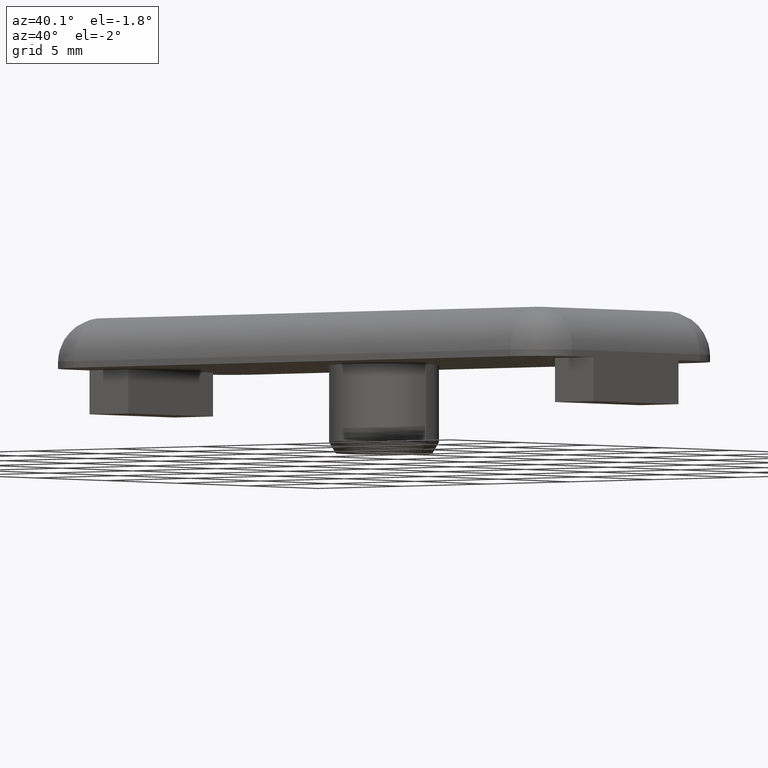
[diagram: clean part render]
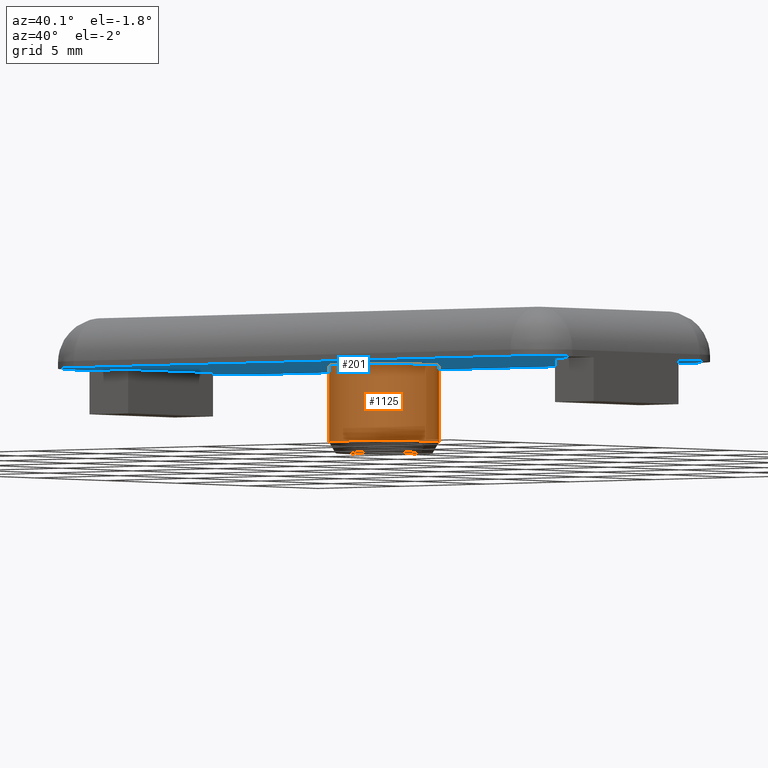
[diagram: same view with the hole feature highlighted: cylindrical wall and planar end face, labeled with their STEP entity ids]
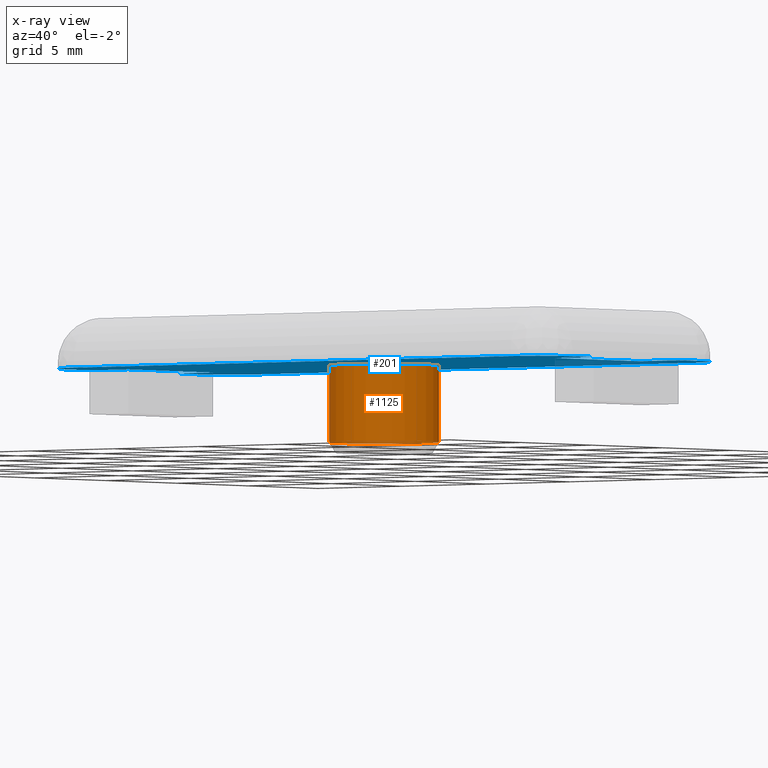
[diagram: x-ray of the same camera — body ghosted, the hole faces saturated]
A machine part, auxiliary view. The highlighted faces form one hole feature of diameter 5 mm: the cylindrical wall (entity #1125, orange) and its adjacent planar end face (entity #201, blue) — they share a circular edge in the B-rep.
The next image is the same camera in x-ray (body ghosted, the hole faces saturated) — the bore reads through the body.
Wall:
#181=CARTESIAN_POINT('',(-2.500000000000000,0.0,0.0));
#182=VERTEX_POINT('',#181);
#183=CARTESIAN_POINT('',(2.500000000000000,0.0,0.0));
#184=VERTEX_POINT('',#183);
#185=CARTESIAN_POINT('',(0.0,0.0,0.0));
#186=DIRECTION('',(0.0,0.0,-1.0));
#187=DIRECTION('',(1.0,0.0,0.0));
#188=AXIS2_PLACEMENT_3D('',#185,#186,#187);
#189=CIRCLE('',#188,2.500000000000000);
#190=EDGE_CURVE('',#182,#184,#189,.T.);
#192=CARTESIAN_POINT('',(0.0,0.0,0.0));
#193=DIRECTION('',(0.0,0.0,-1.0));
#194=DIRECTION('',(1.0,0.0,0.0));
#195=AXIS2_PLACEMENT_3D('',#192,#193,#194);
#196=CIRCLE('',#195,2.500000000000000);
#197=EDGE_CURVE('',#184,#182,#196,.T.);
#1091=CARTESIAN_POINT('',(0.0,0.0,0.0));
#1092=DIRECTION('',(0.0,0.0,-1.0));
#1093=DIRECTION('',(1.0,0.0,0.0));
#1094=AXIS2_PLACEMENT_3D('',#1091,#1092,#1093);
#1095=CYLINDRICAL_SURFACE('',#1094,2.500000000000000);
#1096=ORIENTED_EDGE('',*,*,#197,.T.);
#1097=ORIENTED_EDGE('',*,*,#190,.T.);
#1098=CARTESIAN_POINT('',(2.500000000000000,0.0,-3.500000000000000));
#1099=VERTEX_POINT('',#1098);
#1100=CARTESIAN_POINT('',(2.500000000000000,0.0,0.0));
#1101=DIRECTION('',(0.0,0.0,-1.0));
#1102=VECTOR('',#1101,3.500000000000000);
#1103=LINE('',#1100,#1102);
#1104=EDGE_CURVE('',#184,#1099,#1103,.T.);
#1105=ORIENTED_EDGE('',*,*,#1104,.T.);
#1106=CARTESIAN_POINT('',(-2.500000000000000,0.0,-3.500000000000000));
#1107=VERTEX_POINT('',#1106);
#1108=CARTESIAN_POINT('',(0.0,0.0,-3.500000000000000));
#1109=DIRECTION('',(0.0,0.0,-1.0));
#1110=DIRECTION('',(1.0,0.0,0.0));
#1111=AXIS2_PLACEMENT_3D('',#1108,#1109,#1110);
#1112=CIRCLE('',#1111,2.500000000000000);
#1113=EDGE_CURVE('',#1107,#1099,#1112,.T.);
#1114=ORIENTED_EDGE('',*,*,#1113,.F.);
#1115=CARTESIAN_POINT('',(0.0,0.0,-3.500000000000000));
#1116=DIRECTION('',(0.0,0.0,-1.0));
#1117=DIRECTION('',(1.0,0.0,0.0));
#1118=AXIS2_PLACEMENT_3D('',#1115,#1116,#1117);
#1119=CIRCLE('',#1118,2.500000000000000);
#1120=EDGE_CURVE('',#1099,#1107,#1119,.T.);
#1121=ORIENTED_EDGE('',*,*,#1120,.F.);
#1122=ORIENTED_EDGE('',*,*,#1104,.F.);
#1123=EDGE_LOOP('',(#1096,#1097,#1105,#1114,#1121,#1122));
#1124=FACE_OUTER_BOUND('',#1123,.T.);
#1125=ADVANCED_FACE('',(#1124),#1095,.T.);
End face:
#42=CARTESIAN_POINT('',(-18.000018310589386,-7.800018310589508,0.0));
#43=DIRECTION('',(0.0,0.0,1.0));
#44=DIRECTION('',(1.0,0.0,0.0));
#45=AXIS2_PLACEMENT_3D('',#42,#43,#44);
#46=PLANE('',#45);
#47=CARTESIAN_POINT('',(13.000000000000110,6.500000000000000,0.0));
#48=VERTEX_POINT('',#47);
#49=CARTESIAN_POINT('',(15.000000000000110,4.500000000000000,0.0));
#50=VERTEX_POINT('',#49);
#51=CARTESIAN_POINT('',(13.000000000000110,4.500000000000000,0.0));
#52=DIRECTION('',(0.0,0.0,-1.0));
#53=DIRECTION('',(0.0,1.0,0.0));
#54=AXIS2_PLACEMENT_3D('',#51,#52,#53);
#55=CIRCLE('',#54,2.0);
#56=EDGE_CURVE('',#48,#50,#55,.T.);
#57=ORIENTED_EDGE('',*,*,#56,.T.);
#58=CARTESIAN_POINT('',(15.000000000000110,3.0,0.0));
#59=VERTEX_POINT('',#58);
#60=CARTESIAN_POINT('',(15.000000000000110,3.0,0.0));
#61=DIRECTION('',(0.0,1.0,0.0));
#62=VECTOR('',#61,1.500000000000000);
#63=LINE('',#60,#62);
#64=EDGE_CURVE('',#59,#50,#63,.T.);
#65=ORIENTED_EDGE('',*,*,#64,.F.);
#66=CARTESIAN_POINT('',(12.700000000000159,3.0,0.0));
#67=VERTEX_POINT('',#66);
#68=CARTESIAN_POINT('',(12.700000000000159,3.0,0.0));
#69=DIRECTION('',(1.0,0.0,0.0));
#70=VECTOR('',#69,2.299999999999951);
#71=LINE('',#68,#70);
#72=EDGE_CURVE('',#67,#59,#71,.T.);
#73=ORIENTED_EDGE('',*,*,#72,.F.);
#74=CARTESIAN_POINT('',(12.700000000000159,-3.0,0.0));
#75=VERTEX_POINT('',#74);
#76=CARTESIAN_POINT('',(12.700000000000159,-3.0,0.0));
#77=DIRECTION('',(0.0,1.0,0.0));
#78=VECTOR('',#77,6.0);
#79=LINE('',#76,#78);
#80=EDGE_CURVE('',#75,#67,#79,.T.);
#81=ORIENTED_EDGE('',*,*,#80,.F.);
#82=CARTESIAN_POINT('',(15.000000000000110,-3.0,0.0));
#83=VERTEX_POINT('',#82);
#84=CARTESIAN_POINT('',(15.000000000000110,-3.0,0.0));
#85=DIRECTION('',(-1.0,0.0,0.0));
#86=VECTOR('',#85,2.299999999999951);
#87=LINE('',#84,#86);
#88=EDGE_CURVE('',#83,#75,#87,.T.);
#89=ORIENTED_EDGE('',*,*,#88,.F.);
#90=CARTESIAN_POINT('',(15.000000000000110,-4.500000000000000,0.0));
#91=VERTEX_POINT('',#90);
#92=CARTESIAN_POINT('',(15.000000000000110,-4.500000000000000,0.0));
#93=DIRECTION('',(0.0,1.0,0.0));
#94=VECTOR('',#93,1.500000000000000);
#95=LINE('',#92,#94);
#96=EDGE_CURVE('',#91,#83,#95,.T.);
#97=ORIENTED_EDGE('',*,*,#96,.F.);
#98=CARTESIAN_POINT('',(13.000000000000110,-6.500000000000000,0.0));
#99=VERTEX_POINT('',#98);
#100=CARTESIAN_POINT('',(13.000000000000110,-4.500000000000000,0.0));
#101=DIRECTION('',(0.0,0.0,-1.0));
#102=DIRECTION('',(1.0,0.0,0.0));
#103=AXIS2_PLACEMENT_3D('',#100,#101,#102);
#104=CIRCLE('',#103,2.0);
#105=EDGE_CURVE('',#91,#99,#104,.T.);
#106=ORIENTED_EDGE('',*,*,#105,.T.);
#107=CARTESIAN_POINT('',(-12.999999999999879,-6.500000000000000,0.0));
#108=VERTEX_POINT('',#107);
#109=CARTESIAN_POINT('',(-12.999999999999879,-6.500000000000000,0.0));
#110=DIRECTION('',(1.0,0.0,0.0));
#111=VECTOR('',#110,25.999999999999989);
#112=LINE('',#109,#111);
#113=EDGE_CURVE('',#108,#99,#112,.T.);
#114=ORIENTED_EDGE('',*,*,#113,.F.);
#115=CARTESIAN_POINT('',(-14.999999999999879,-4.500000000000000,0.0));
#116=VERTEX_POINT('',#115);
#117=CARTESIAN_POINT('',(-12.999999999999879,-4.500000000000000,0.0));
#118=DIRECTION('',(0.0,0.0,-1.0));
#119=DIRECTION('',(0.0,-1.0,0.0));
#120=AXIS2_PLACEMENT_3D('',#117,#118,#119);
#121=CIRCLE('',#120,2.0);
#122=EDGE_CURVE('',#108,#116,#121,.T.);
#123=ORIENTED_EDGE('',*,*,#122,.T.);
#124=CARTESIAN_POINT('',(-14.999999999999879,-3.0,0.0));
#125=VERTEX_POINT('',#124);
#126=CARTESIAN_POINT('',(-14.999999999999879,-3.0,0.0));
#127=DIRECTION('',(0.0,-1.0,0.0));
#128=VECTOR('',#127,1.500000000000000);
#129=LINE('',#126,#128);
#130=EDGE_CURVE('',#125,#116,#129,.T.);
#131=ORIENTED_EDGE('',*,*,#130,.F.);
#132=CARTESIAN_POINT('',(-12.699999999999930,-3.0,0.0));
#133=VERTEX_POINT('',#132);
#134=CARTESIAN_POINT('',(-12.699999999999930,-3.0,0.0));
#135=DIRECTION('',(-1.0,0.0,0.0));
#136=VECTOR('',#135,2.299999999999949);
#137=LINE('',#134,#136);
#138=EDGE_CURVE('',#133,#125,#137,.T.);
#139=ORIENTED_EDGE('',*,*,#138,.F.);
#140=CARTESIAN_POINT('',(-12.699999999999930,3.0,0.0));
#141=VERTEX_POINT('',#140);
#142=CARTESIAN_POINT('',(-12.699999999999930,3.0,0.0));
#143=DIRECTION('',(0.0,-1.0,0.0));
#144=VECTOR('',#143,6.0);
#145=LINE('',#142,#144);
#146=EDGE_CURVE('',#141,#133,#145,.T.);
#147=ORIENTED_EDGE('',*,*,#146,.F.);
#148=CARTESIAN_POINT('',(-14.999999999999879,3.0,0.0));
#149=VERTEX_POINT('',#148);
#150=CARTESIAN_POINT('',(-14.999999999999879,3.0,0.0));
#151=DIRECTION('',(1.0,0.0,0.0));
#152=VECTOR('',#151,2.299999999999949);
#153=LINE('',#150,#152);
#154=EDGE_CURVE('',#149,#141,#153,.T.);
#155=ORIENTED_EDGE('',*,*,#154,.F.);
#156=CARTESIAN_POINT('',(-14.999999999999879,4.500000000000000,0.0));
#157=VERTEX_POINT('',#156);
#158=CARTESIAN_POINT('',(-14.999999999999879,4.500000000000000,0.0));
#159=DIRECTION('',(0.0,-1.0,0.0));
#160=VECTOR('',#159,1.500000000000000);
#161=LINE('',#158,#160);
#162=EDGE_CURVE('',#157,#149,#161,.T.);
#163=ORIENTED_EDGE('',*,*,#162,.F.);
#164=CARTESIAN_POINT('',(-12.999999999999879,6.500000000000000,0.0));
#165=VERTEX_POINT('',#164);
#166=CARTESIAN_POINT('',(-12.999999999999879,4.500000000000000,0.0));
#167=DIRECTION('',(0.0,0.0,-1.0));
#168=DIRECTION('',(-1.0,0.0,0.0));
#169=AXIS2_PLACEMENT_3D('',#166,#167,#168);
#170=CIRCLE('',#169,2.0);
#171=EDGE_CURVE('',#157,#165,#170,.T.);
#172=ORIENTED_EDGE('',*,*,#171,.T.);
#173=CARTESIAN_POINT('',(13.000000000000110,6.500000000000000,0.0));
#174=DIRECTION('',(-1.0,0.0,0.0));
#175=VECTOR('',#174,25.999999999999989);
#176=LINE('',#173,#175);
#177=EDGE_CURVE('',#48,#165,#176,.T.);
#178=ORIENTED_EDGE('',*,*,#177,.F.);
#179=EDGE_LOOP('',(#57,#65,#73,#81,#89,#97,#106,#114,#123,#131,#139,#147,#155,#163,#172,#178));
#180=FACE_OUTER_BOUND('',#179,.T.);
#181=CARTESIAN_POINT('',(-2.500000000000000,0.0,0.0));
#182=VERTEX_POINT('',#181);
#183=CARTESIAN_POINT('',(2.500000000000000,0.0,0.0));
#184=VERTEX_POINT('',#183);
#185=CARTESIAN_POINT('',(0.0,0.0,0.0));
#186=DIRECTION('',(0.0,0.0,-1.0));
#187=DIRECTION('',(1.0,0.0,0.0));
#188=AXIS2_PLACEMENT_3D('',#185,#186,#187);
#189=CIRCLE('',#188,2.500000000000000);
#190=EDGE_CURVE('',#182,#184,#189,.T.);
#191=ORIENTED_EDGE('',*,*,#190,.F.);
#192=CARTESIAN_POINT('',(0.0,0.0,0.0));
#193=DIRECTION('',(0.0,0.0,-1.0));
#194=DIRECTION('',(1.0,0.0,0.0));
#195=AXIS2_PLACEMENT_3D('',#192,#193,#194);
#196=CIRCLE('',#195,2.500000000000000);
#197=EDGE_CURVE('',#184,#182,#196,.T.);
#198=ORIENTED_EDGE('',*,*,#197,.F.);
#199=EDGE_LOOP('',(#191,#198));
#200=FACE_BOUND('',#199,.T.);
#201=ADVANCED_FACE('',(#180,#200),#46,.F.);